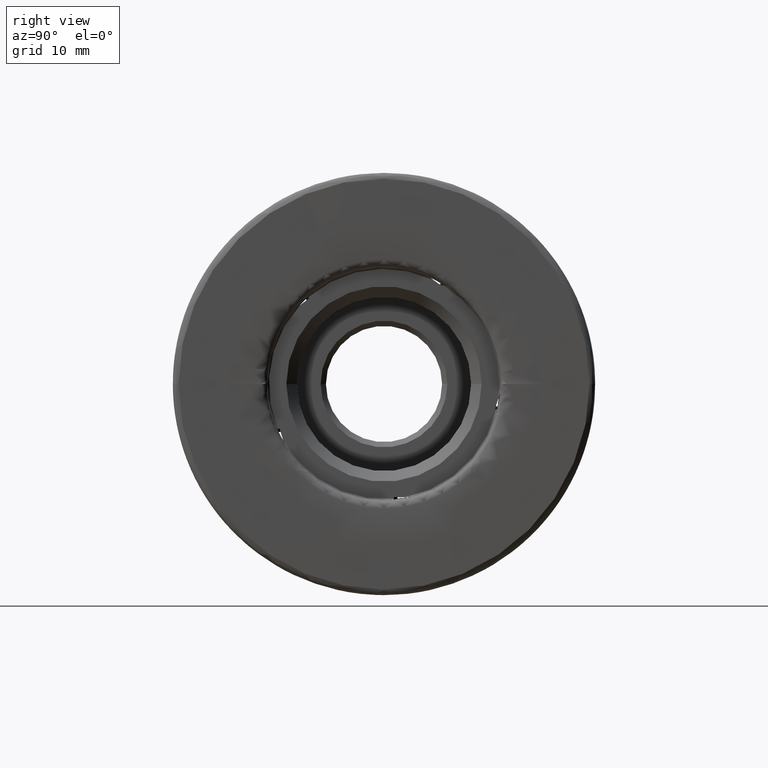
[diagram: clean part render]
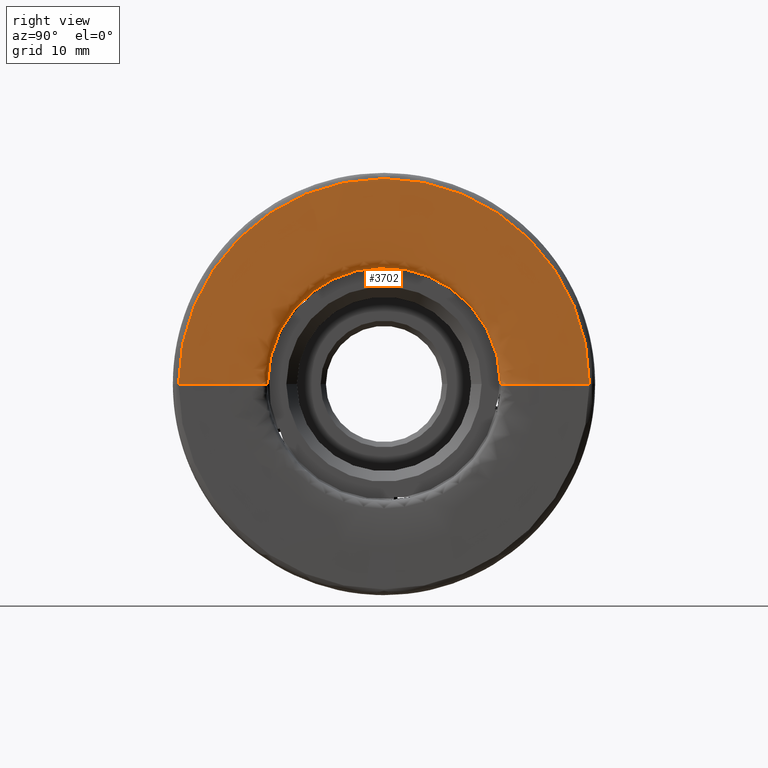
[diagram: same view with one face highlighted and labeled with its STEP entity id]
A machine part, right view. The second image highlights one B-rep face of the part: STEP entity #3702.
In plain terms, the highlighted face is a freeform B-spline surface patch.
Its self-contained STEP definition (entity closure, byte-faithful):
#27 = ORIENTED_EDGE ( 'NONE', *, *, #3282, .T. ) ;
#33 = DIRECTION ( 'NONE',  ( 1.000000000000000000, 1.212845221071201000E-016, -0.0000000000000000000 ) ) ;
#34 = CARTESIAN_POINT ( 'NONE',  ( -0.8696917510313565400, -7.516596019862685800E-016, 0.0000000000000000000 ) ) ;
#83 = ORIENTED_EDGE ( 'NONE', *, *, #2773, .T. ) ;
#88 = VERTEX_POINT ( 'NONE', #342 ) ;
#96 = ORIENTED_EDGE ( 'NONE', *, *, #1976, .T. ) ;
#97 = ORIENTED_EDGE ( 'NONE', *, *, #8500, .T. ) ;
#98 = EDGE_CURVE ( 'NONE', #3058, #8533, #6278, .T. ) ;
#143 = CARTESIAN_POINT ( 'NONE',  ( -8.133452040763304000, 6.528902845552036800, 9.136199286077710400 ) ) ;
#153 = CARTESIAN_POINT ( 'NONE',  ( -7.730191986444244100, 4.188811731818793400, 10.20871659907246500 ) ) ;
#172 = CARTESIAN_POINT ( 'NONE',  ( -5.167618179684886600, 7.210644156053779100, 8.355523014367426200 ) ) ;
#189 = ORIENTED_EDGE ( 'NONE', *, *, #1206, .T. ) ;
#225 = CARTESIAN_POINT ( 'NONE',  ( -8.103095340901520100, 6.304940127833405400, 9.254847104982353300 ) ) ;
#231 = EDGE_CURVE ( 'NONE', #4981, #3433, #4327, .T. ) ;
#241 = AXIS2_PLACEMENT_3D ( 'NONE', #4249, #33, #4140 ) ;
#246 = CARTESIAN_POINT ( 'NONE',  ( -8.103095340901520100, 6.304940127833405400, 9.254847104982353300 ) ) ;
#251 = CARTESIAN_POINT ( 'NONE',  ( 0.1414108656386861600, -11.00691800903628200, 1.347958690824363700E-015 ) ) ;
#257 = CARTESIAN_POINT ( 'NONE',  ( -7.500320081746114200, -5.138439484843711800, 9.765985245245646600 ) ) ;
#259 = CARTESIAN_POINT ( 'NONE',  ( -8.097428561273543900, -6.651165486291844800, 9.003299657788391000 ) ) ;
#260 = CARTESIAN_POINT ( 'NONE',  ( -7.853251010269622700, -8.464398965193375100, 7.102320641829043900 ) ) ;
#266 = ORIENTED_EDGE ( 'NONE', *, *, #6986, .F. ) ;
#268 = CARTESIAN_POINT ( 'NONE',  ( 0.6937419162715179300, -19.45537401582458500, 2.382596151469448700E-015 ) ) ;
#285 = CARTESIAN_POINT ( 'NONE',  ( 0.6969263167657552300, -19.31370703505474800, 2.365246950014951400E-015 ) ) ;
#342 = CARTESIAN_POINT ( 'NONE',  ( -0.8696917510313612000, 4.186646063532990100, 10.21029004918365300 ) ) ;
#383 = CARTESIAN_POINT ( 'NONE',  ( -8.254990625574258400, -11.59891533884588500, 1.420457454329875000E-015 ) ) ;
#415 = CARTESIAN_POINT ( 'NONE',  ( -7.757778927113879100, 11.03530824896869900, 0.0000000000000000000 ) ) ;
#427 = CARTESIAN_POINT ( 'NONE',  ( -5.389265046463071600, -6.475850095882044000, 8.935401148545077300 ) ) ;
#453 = CARTESIAN_POINT ( 'NONE',  ( -2.510481555865624600, 11.03530824896864700, 22.07061649793729400 ) ) ;
#475 = CARTESIAN_POINT ( 'NONE',  ( 0.09418834465118783300, -11.03530824896861900, 22.07061649793724100 ) ) ;
#482 = CARTESIAN_POINT ( 'NONE',  ( -7.949537994690445900, -6.358018307624207400, 9.075089869590669900 ) ) ;
#498 = B_SPLINE_CURVE_WITH_KNOTS ( 'NONE', 3,
 ( #609, #8728, #6030, #1970 ),
 .UNSPECIFIED., .F., .F.,
 ( 4, 4 ),
 ( 0.0001001541824127477300, 0.0006842766820816323200 ),
 .UNSPECIFIED. ) ;
#500 = CARTESIAN_POINT ( 'NONE',  ( 0.1414108656386861600, -11.00691800903628200, 1.347958690824363700E-015 ) ) ;
#515 = ORIENTED_EDGE ( 'NONE', *, *, #3437, .F. ) ;
#531 = CARTESIAN_POINT ( 'NONE',  ( 0.6714722102465933200, 11.41926280022476400, 0.0000000000000000000 ) ) ;
#559 = CARTESIAN_POINT ( 'NONE',  ( 0.6969263167657572300, 11.77911201348555000, 23.55822402697109700 ) ) ;
#582 = CARTESIAN_POINT ( 'NONE',  ( 0.6969263167657566700, -16.72179351124919200, 33.44358702249838400 ) ) ;
#586 = B_SPLINE_CURVE_WITH_KNOTS ( 'NONE', 3,
 ( #6435, #5750, #2362, #7106 ),
 .UNSPECIFIED., .F., .F.,
 ( 4, 4 ),
 ( 0.007308597439289497100, 0.007310968974594453900 ),
 .UNSPECIFIED. ) ;
#596 = CARTESIAN_POINT ( 'NONE',  ( -5.369035156198138200, -5.138439484843835300, 9.765985245245557800 ) ) ;
#601 = EDGE_CURVE ( 'NONE', #1209, #7885, #7044, .T. ) ;
#609 = CARTESIAN_POINT ( 'NONE',  ( -5.228294190569582300, 6.942295137775761100, 8.578028116634442300 ) ) ;
#612 = CARTESIAN_POINT ( 'NONE',  ( 0.6969263167657552300, -19.31370703505474800, 2.365246950014951400E-015 ) ) ;
#614 = CARTESIAN_POINT ( 'NONE',  ( -0.8696917510316236600, -6.825045140086192700, 8.671608096860776300 ) ) ;
#626 = CARTESIAN_POINT ( 'NONE',  ( -7.795526551225449000, 7.061729519420713300, 8.481836371073169900 ) ) ;
#642 = ORIENTED_EDGE ( 'NONE', *, *, #4142, .T. ) ;
#667 = CARTESIAN_POINT ( 'NONE',  ( 0.6982908682429076500, 11.51890422923840000, 0.0000000000000000000 ) ) ;
#713 = DIRECTION ( 'NONE',  ( -1.178981662885766900E-016, 1.000000000000000000, 0.0000000000000000000 ) ) ;
#794 = CARTESIAN_POINT ( 'NONE',  ( -5.369035156198118700, 7.700138780149115900, 7.904801763244902800 ) ) ;
#803 = VERTEX_POINT ( 'NONE', #8547 ) ;
#809 = CARTESIAN_POINT ( 'NONE',  ( -8.253408673220558700, 3.017228392203058700, 11.05992172040585000 ) ) ;
#820 = CARTESIAN_POINT ( 'NONE',  ( -8.168596550491511000, -6.794680611048133500, 8.993622668373296500 ) ) ;
#844 = CARTESIAN_POINT ( 'NONE',  ( -7.591243055322445700, 4.186646063532768900, 10.21029004918382000 ) ) ;
#851 = CARTESIAN_POINT ( 'NONE',  ( -5.228294190569582300, 6.942295137775761100, 8.578028116634442300 ) ) ;
#909 = CARTESIAN_POINT ( 'NONE',  ( -8.254990625574258400, -9.882657756378288000, 6.071895314315892000 ) ) ;
#929 = CARTESIAN_POINT ( 'NONE',  ( 0.5629607940360884500, -11.15629238571688500, 1.366251776052017200E-015 ) ) ;
#933 = VERTEX_POINT ( 'NONE', #5375 ) ;
#934 = VERTEX_POINT ( 'NONE', #1309 ) ;
#940 = CARTESIAN_POINT ( 'NONE',  ( -7.730191986444257400, -8.414652433189239400, 7.138463612950823200 ) ) ;
#951 = B_SPLINE_CURVE_WITH_KNOTS ( 'NONE', 3,
 ( #7657, #2898, #4285, #225 ),
 .UNSPECIFIED., .F., .F.,
 ( 4, 4 ),
 ( 0.003299936296098163200, 0.003674845063559309200 ),
 .UNSPECIFIED. ) ;
#965 = CARTESIAN_POINT ( 'NONE',  ( 0.6937419162715179300, -19.45537401582458500, 2.382596151469448700E-015 ) ) ;
#969 = CARTESIAN_POINT ( 'NONE',  ( -8.225970248938017100, -6.943921952626083400, 8.998936396492363000 ) ) ;
#973 = CARTESIAN_POINT ( 'NONE',  ( -8.097848563752895900, -6.550092255241969100, 9.076733658589038400 ) ) ;
#993 = CARTESIAN_POINT ( 'NONE',  ( -6.789891773230120700, 7.700138780149209200, 7.904801763244835300 ) ) ;
#1014 = ORIENTED_EDGE ( 'NONE', *, *, #8697, .F. ) ;
#1069 = CARTESIAN_POINT ( 'NONE',  ( -8.254990625574262000, 11.50844146396793400, 23.01688292793586800 ) ) ;
#1087 = EDGE_CURVE ( 'NONE', #3058, #7319, #5105, .T. ) ;
#1100 = CARTESIAN_POINT ( 'NONE',  ( -7.757778927113876400, -11.03530824896869900, 22.07061649793739700 ) ) ;
#1103 = CARTESIAN_POINT ( 'NONE',  ( -0.8696917510313565400, -7.516596019862685800E-016, 0.0000000000000000000 ) ) ;
#1126 = CARTESIAN_POINT ( 'NONE',  ( -2.510481555865622400, -11.03530824896864900, 1.351435492470383700E-015 ) ) ;
#1159 = CARTESIAN_POINT ( 'NONE',  ( 0.1151765312538646600, 11.00573363477670700, 0.0000000000000000000 ) ) ;
#1169 = CARTESIAN_POINT ( 'NONE',  ( -7.718127067398414800, -5.654813678435170100, 9.480206047370064200 ) ) ;
#1190 = CARTESIAN_POINT ( 'NONE',  ( 0.3735472964681108600, 11.02085949907357000, 22.04171899814713600 ) ) ;
#1206 = EDGE_CURVE ( 'NONE', #3433, #4292, #3506, .T. ) ;
#1209 = VERTEX_POINT ( 'NONE', #3083 ) ;
#1220 = CARTESIAN_POINT ( 'NONE',  ( 0.6714722102465962000, -11.41926280022476300, 22.83852560044952900 ) ) ;
#1240 = CARTESIAN_POINT ( 'NONE',  ( 0.6969263167657600000, -11.77911201348555200, 1.442525182411321500E-015 ) ) ;
#1272 = CARTESIAN_POINT ( 'NONE',  ( 0.6969263167657506800, 19.16754985605572500, 0.0000000000000000000 ) ) ;
#1295 = CARTESIAN_POINT ( 'NONE',  ( 0.6977100512374900800, 19.41120173582892500, 38.82240347165784300 ) ) ;
#1299 = EDGE_CURVE ( 'NONE', #6760, #934, #6981, .T. ) ;
#1304 = CARTESIAN_POINT ( 'NONE',  ( -5.322623754658423900, -5.205156805567278300, 9.730881473683417900 ) ) ;
#1308 = CARTESIAN_POINT ( 'NONE',  ( -5.228294190569582300, -6.012902359748980400, 9.253271495091947700 ) ) ;
#1309 = CARTESIAN_POINT ( 'NONE',  ( -8.097848563752901200, 6.608396871083175300, 9.034372875601386400 ) ) ;
#1314 = CARTESIAN_POINT ( 'NONE',  ( -8.254990625574258400, -9.882657756378288000, 6.071895314315892000 ) ) ;
#1319 = CARTESIAN_POINT ( 'NONE',  ( -0.2446104554640997400, 11.03530824896862100, 0.0000000000000000000 ) ) ;
#1329 = CARTESIAN_POINT ( 'NONE',  ( -8.254990625574260200, -1.647382046603456600E-015, 0.0000000000000000000 ) ) ;
#1345 = CARTESIAN_POINT ( 'NONE',  ( 0.6969263167657572300, 11.77911201348555000, 0.0000000000000000000 ) ) ;
#1359 = CIRCLE ( 'NONE', #5379, 19.45537401582458500 ) ;
#1367 = ORIENTED_EDGE ( 'NONE', *, *, #4884, .T. ) ;
#1373 = ORIENTED_EDGE ( 'NONE', *, *, #601, .F. ) ;
#1440 = CARTESIAN_POINT ( 'NONE',  ( -7.641061047374766000, 7.467963322844704900, 8.124503182250761000 ) ) ;
#1446 = CARTESIAN_POINT ( 'NONE',  ( -7.641061047374766000, -5.419134113012509200, 9.613064735813477300 ) ) ;
#1450 = CARTESIAN_POINT ( 'NONE',  ( -7.608861582086029300, -5.320663269652974300, 9.668575306172876100 ) ) ;
#1455 = VERTEX_POINT ( 'NONE', #8222 ) ;
#1485 = CARTESIAN_POINT ( 'NONE',  ( -7.561935809097423800, -5.227013328919222000, 9.719381515433180900 ) ) ;
#1492 = CARTESIAN_POINT ( 'NONE',  ( -8.181320298477579900, 3.452905980176133900, 10.74338342424462100 ) ) ;
#1496 = CARTESIAN_POINT ( 'NONE',  ( -8.115696190556647600, -6.610610708264952800, 9.054137626308529400 ) ) ;
#1500 = CARTESIAN_POINT ( 'NONE',  ( -8.186039964715188700, 6.417455931034591100, 9.294817484444752900 ) ) ;
#1510 = CARTESIAN_POINT ( 'NONE',  ( -4.552733561601819200, 4.186646063532845300, 10.21029004918375800 ) ) ;
#1555 = EDGE_CURVE ( 'NONE', #6975, #6736, #586, .T. ) ;
#1579 = VERTEX_POINT ( 'NONE', #3070 ) ;
#1586 = CARTESIAN_POINT ( 'NONE',  ( -8.253408673220558700, -9.586235772804981200, 6.287258491617449400 ) ) ;
#1608 = CARTESIAN_POINT ( 'NONE',  ( 0.6714722102465962000, -11.41926280022476600, 1.398456363691769900E-015 ) ) ;
#1619 = CARTESIAN_POINT ( 'NONE',  ( -7.591243055322459900, -8.416818101475271900, 7.136890162839468300 ) ) ;
#1623 = VERTEX_POINT ( 'NONE', #427 ) ;
#1648 = CARTESIAN_POINT ( 'NONE',  ( -8.099219451445970100, -6.752319262858111200, 8.929807137244649700 ) ) ;
#1669 = CARTESIAN_POINT ( 'NONE',  ( -7.641061047374766000, -5.419134113012509200, 9.613064735813477300 ) ) ;
#1704 = CARTESIAN_POINT ( 'NONE',  ( -7.500320081746123100, 7.700138780149251800, 7.904801763244803300 ) ) ;
#1734 = CARTESIAN_POINT ( 'NONE',  ( -8.102536846945383800, 6.304578706288220100, 9.254432779714026200 ) ) ;
#1741 = CARTESIAN_POINT ( 'NONE',  ( -8.254990625574258400, -11.50844146396793700, 1.409377600202301300E-015 ) ) ;
#1764 = CARTESIAN_POINT ( 'NONE',  ( -8.101977386003802900, 6.304217719004478600, 9.254019196085854700 ) ) ;
#1773 = CARTESIAN_POINT ( 'NONE',  ( -7.667305052235933600, 11.03530824896869700, 0.0000000000000000000 ) ) ;
#1775 = DIRECTION ( 'NONE',  ( -1.178981662885766900E-016, 1.000000000000000000, 0.0000000000000000000 ) ) ;
#1808 = CARTESIAN_POINT ( 'NONE',  ( 0.06793019231952912600, 11.03530824896861900, 22.07061649793723400 ) ) ;
#1836 = CARTESIAN_POINT ( 'NONE',  ( 0.1151765312538673600, -11.00573363477670500, 22.01146726955341400 ) ) ;
#1850 = CARTESIAN_POINT ( 'NONE',  ( -8.202900976399851300, 6.386680185810615900, 9.352497112597877300 ) ) ;
#1858 = CARTESIAN_POINT ( 'NONE',  ( -8.103095340901520100, 6.304940127833405400, 9.254847104982353300 ) ) ;
#1862 = CARTESIAN_POINT ( 'NONE',  ( 0.3735472964681134700, -11.02085949907357000, 1.349666030939314800E-015 ) ) ;
#1896 = CARTESIAN_POINT ( 'NONE',  ( 0.6982908682429076500, 11.51890422923840000, 0.0000000000000000000 ) ) ;
#1925 = CARTESIAN_POINT ( 'NONE',  ( 0.6969263167657572300, 11.83028082163613700, 23.66056164327226300 ) ) ;
#1938 = CARTESIAN_POINT ( 'NONE',  ( -3.881345571862484100, 6.390931035752313200, 8.997289751217397900 ) ) ;
#1949 = CARTESIAN_POINT ( 'NONE',  ( 0.6969263167657553400, -19.16754985605572200, 38.33509971211144300 ) ) ;
#1970 = CARTESIAN_POINT ( 'NONE',  ( -5.389265046463077800, 6.496923755382821900, 8.920090238697053300 ) ) ;
#1972 = CIRCLE ( 'NONE', #4173, 11.59891533884588300 ) ;
#1975 = CARTESIAN_POINT ( 'NONE',  ( 0.6977100512374947400, -19.41120173582892500, 2.377186607338644100E-015 ) ) ;
#1976 = EDGE_CURVE ( 'NONE', #1579, #933, #7634, .T. ) ;
#1985 = CARTESIAN_POINT ( 'NONE',  ( -5.284766256120973600, -5.274566670378680700, 9.693488852353208800 ) ) ;
#1989 = B_SPLINE_CURVE_WITH_KNOTS ( 'NONE', 3,
 ( #1704, #993, #2369, #7116 ),
 .UNSPECIFIED., .F., .F.,
 ( 4, 4 ),
 ( 0.0009313455847956795300, 0.003068269161334829400 ),
 .UNSPECIFIED. ) ;
#2005 = CARTESIAN_POINT ( 'NONE',  ( 0.07668290976341447800, 11.03530824896862100, 0.0000000000000000000 ) ) ;
#2015 = DIRECTION ( 'NONE',  ( -1.495591118047953400E-016, 1.000000000000000000, 0.0000000000000000000 ) ) ;
#2022 = CARTESIAN_POINT ( 'NONE',  ( -5.281942811959955200, -6.169997256073138200, 9.151189083124130300 ) ) ;
#2028 = CARTESIAN_POINT ( 'NONE',  ( 0.6969263167657551200, 14.27603716644266800, 0.0000000000000000000 ) ) ;
#2064 = CARTESIAN_POINT ( 'NONE',  ( -8.097848563752901200, 6.608396871083175300, 9.034372875601386400 ) ) ;
#2101 = ORIENTED_EDGE ( 'NONE', *, *, #4421, .F. ) ;
#2111 = CARTESIAN_POINT ( 'NONE',  ( -8.025962926947555000, 6.478343789075183600, 9.046086960316015900 ) ) ;
#2147 = CARTESIAN_POINT ( 'NONE',  ( -0.8696917510316236600, -6.825045140086192700, 8.671608096860776300 ) ) ;
#2158 = CARTESIAN_POINT ( 'NONE',  ( -8.084689000081132400, 3.737112518526766200, 10.53689528739569100 ) ) ;
#2190 = CARTESIAN_POINT ( 'NONE',  ( -0.8696917510313612000, 4.186646063532990100, 10.21029004918365300 ) ) ;
#2240 = ORIENTED_EDGE ( 'NONE', *, *, #3322, .F. ) ;
#2255 = B_SPLINE_CURVE_WITH_KNOTS ( 'NONE', 3,
 ( #2612, #1938, #2583, #7355 ),
 .UNSPECIFIED., .F., .F.,
 ( 4, 4 ),
 ( 0.0001947277688316339200, 0.004735485741109748400 ),
 .UNSPECIFIED. ) ;
#2261 = CARTESIAN_POINT ( 'NONE',  ( -8.181320298477578100, -9.150558184831901100, 6.603796787778681400 ) ) ;
#2279 = CARTESIAN_POINT ( 'NONE',  ( 0.6969263167657601100, -11.67677439718438000, 1.429992438987761200E-015 ) ) ;
#2289 = CARTESIAN_POINT ( 'NONE',  ( -4.552733561601827200, -8.416818101475176000, 7.136890162839534000 ) ) ;
#2322 = CARTESIAN_POINT ( 'NONE',  ( -8.254909641250778300, -7.023099398535223700, 9.112222273959838900 ) ) ;
#2341 = CARTESIAN_POINT ( 'NONE',  ( -0.8696917510313578700, 11.03530824896863100, 0.0000000000000000000 ) ) ;
#2362 = CARTESIAN_POINT ( 'NONE',  ( -8.102536846945378500, -6.853266637145045700, 8.855787663343276600 ) ) ;
#2369 = CARTESIAN_POINT ( 'NONE',  ( -6.079463464714121900, 7.700138780149172700, 7.904801763244861100 ) ) ;
#2419 = CARTESIAN_POINT ( 'NONE',  ( -8.254990625574262000, 11.32749371421204600, 22.65498742842409300 ) ) ;
#2454 = CARTESIAN_POINT ( 'NONE',  ( -7.667305052235931000, -11.03530824896869700, 22.07061649793739400 ) ) ;
#2479 = CARTESIAN_POINT ( 'NONE',  ( 0.06793019231953180400, -11.03530824896862100, 1.351435492470380200E-015 ) ) ;
#2485 = ORIENTED_EDGE ( 'NONE', *, *, #8375, .T. ) ;
#2512 = CARTESIAN_POINT ( 'NONE',  ( 0.1326738906256556300, 11.00639328980257400, 0.0000000000000000000 ) ) ;
#2537 = ORIENTED_EDGE ( 'NONE', *, *, #98, .T. ) ;
#2539 = CARTESIAN_POINT ( 'NONE',  ( 0.5629607940360857900, 11.15629238571688100, 22.31258477143376200 ) ) ;
#2567 = CARTESIAN_POINT ( 'NONE',  ( 0.6982908682429104200, -11.51890422923839600, 23.03780845847680000 ) ) ;
#2583 = CARTESIAN_POINT ( 'NONE',  ( -2.374354239655523300, 6.274780688857371800, 9.079217622547176300 ) ) ;
#2584 = ORIENTED_EDGE ( 'NONE', *, *, #6290, .T. ) ;
#2587 = CARTESIAN_POINT ( 'NONE',  ( 0.6969263167657600000, -11.83028082163613700, 1.448791554123101400E-015 ) ) ;
#2588 = EDGE_CURVE ( 'NONE', #3575, #803, #1989, .T. ) ;
#2593 = ORIENTED_EDGE ( 'NONE', *, *, #231, .T. ) ;
#2612 = CARTESIAN_POINT ( 'NONE',  ( -5.389265046463077800, 6.496923755382821900, 8.920090238697053300 ) ) ;
#2616 = CARTESIAN_POINT ( 'NONE',  ( 0.6969263167657506800, 19.21871866420630300, 0.0000000000000000000 ) ) ;
#2644 = CARTESIAN_POINT ( 'NONE',  ( 0.6937419162715129400, 19.45537401582457800, 38.91074803164914900 ) ) ;
#2655 = CARTESIAN_POINT ( 'NONE',  ( -5.204029470584484500, -5.493588658285973200, 9.571104599944716200 ) ) ;
#2657 = B_SPLINE_CURVE_WITH_KNOTS ( 'NONE', 3,
 ( #909, #4975, #1586, #6332, #2261, #7002, #2932, #7692, #3630, #8372, #4322, #260, #5008, #940, #5679, #1619, #6367, #2289, #7034, #2961 ),
 .UNSPECIFIED., .F., .F.,
 ( 4, 2, 2, 2, 2, 2, 2, 2, 1, 1, 4 ),
 ( 0.001677953997465552700, 0.002227831849715342800, 0.002777709701965132900, 0.003052648628090031200, 0.003327587554214929900, 0.003465057017277376300, 0.003602526480339822600, 0.003739995943402266300, 0.003877465406464710100, 0.006076976815463782900, 0.01047599963346192800 ),
 .UNSPECIFIED. ) ;
#2670 = CARTESIAN_POINT ( 'NONE',  ( 0.1151765312538646600, 11.00573363477670700, 0.0000000000000000000 ) ) ;
#2693 = CARTESIAN_POINT ( 'NONE',  ( 0.6969263167657506800, 19.16754985605572500, 0.0000000000000000000 ) ) ;
#2735 =( BOUNDED_CURVE ( )  B_SPLINE_CURVE ( 3, ( #6424, #4705, #1319, #6060, #2005, #6747, #2670, #7424, #3351, #8097, #4050, #8790, #4734, #667, #5414, #1345, #6087, #2028, #6773, #2693, #7450, #3384, #8127, #4076 ),
 .UNSPECIFIED., .F., .F. ) 
 B_SPLINE_CURVE_WITH_KNOTS ( ( 4, 3, 1, 1, 3, 3, 1, 1, 3, 3, 1, 4 ),
 ( 0.2198479356713848300, 0.2469285383746738800, 0.2476869320919483600, 0.2484453258092228500, 0.2492037195264973400, 0.2673078447924207600, 0.2717270988369754300, 0.2761463528815302200, 0.2805656069260849000, 0.4917962181018118400, 0.4962154721463659700, 0.5000000000000000000 ),
 .UNSPECIFIED. ) 
 CURVE ( )  GEOMETRIC_REPRESENTATION_ITEM ( )  RATIONAL_B_SPLINE_CURVE ( ( 1.000000000000000000, 1.000000000000000000, 1.000000000000000000, 1.000000000000000000, 1.000000000000000000, 1.000000000000000000, 1.000000000000000000, 1.000000000000000000, 1.000000000000000000, 0.8984638551776719100, 0.8984638551776719100, 1.000000000000000000, 1.000000000000000000, 1.000000000000000000, 1.000000000000000000, 1.000000000000000000, 1.000000000000000000, 1.000000000000000000, 1.000000000000000000, 1.000000000000000000, 1.000000000000000000, 1.000000000000000000, 1.000000000000000000, 1.000000000000000000 ) ) 
 REPRESENTATION_ITEM ( '' )  );
#2773 = EDGE_CURVE ( 'NONE', #5381, #6666, #2255, .T. ) ;
#2783 = B_SPLINE_CURVE_WITH_KNOTS ( 'NONE', 3,
 ( #973, #259, #1648, #6393 ),
 .UNSPECIFIED., .F., .F.,
 ( 4, 4 ),
 ( 0.003299936296098143200, 0.003674845063559309200 ),
 .UNSPECIFIED. ) ;
#2820 = CARTESIAN_POINT ( 'NONE',  ( -8.186038306733232500, -6.856787463676824700, 8.975620969015292200 ) ) ;
#2842 = CARTESIAN_POINT ( 'NONE',  ( -7.993870454932744200, 3.947782654404698600, 10.38383447429970000 ) ) ;
#2898 = CARTESIAN_POINT ( 'NONE',  ( -8.097428561273549300, 6.507323640033305900, 9.107806876402033700 ) ) ;
#2900 = CARTESIAN_POINT ( 'NONE',  ( -5.228294190569582300, -6.012902359748980400, 9.253271495091947700 ) ) ;
#2921 = CARTESIAN_POINT ( 'NONE',  ( 0.06793019231953180400, -11.03530824896862100, 1.351435492470380200E-015 ) ) ;
#2931 = CARTESIAN_POINT ( 'NONE',  ( -0.8696917510313565400, -7.516596019862685800E-016, 0.0000000000000000000 ) ) ;
#2932 = CARTESIAN_POINT ( 'NONE',  ( -8.084689000081141300, -8.866351646481273700, 6.810284924627603200 ) ) ;
#2952 = CARTESIAN_POINT ( 'NONE',  ( 0.6969263167657600000, -11.83028082163613700, 1.448791554123101400E-015 ) ) ;
#2961 = CARTESIAN_POINT ( 'NONE',  ( -0.8696917510313575400, -8.416818101475035600, 7.136890162839639700 ) ) ;
#2988 = CARTESIAN_POINT ( 'NONE',  ( -8.254990625574260200, -7.078535149806358900, 9.188535093836787100 ) ) ;
#3050 = CARTESIAN_POINT ( 'NONE',  ( -5.369035156198138200, -5.138439484843835300, 9.765985245245557800 ) ) ;
#3058 = VERTEX_POINT ( 'NONE', #5687 ) ;
#3070 = CARTESIAN_POINT ( 'NONE',  ( -8.202900976399851300, -6.921160607514742000, 8.964174355843846700 ) ) ;
#3083 = CARTESIAN_POINT ( 'NONE',  ( -8.254990625574260200, -7.078535149806358900, 9.188535093836787100 ) ) ;
#3090 = CARTESIAN_POINT ( 'NONE',  ( -8.254990625574258400, -11.32749371421205000, 1.387217891947154900E-015 ) ) ;
#3115 = ORIENTED_EDGE ( 'NONE', *, *, #1555, .F. ) ;
#3121 = CARTESIAN_POINT ( 'NONE',  ( -5.088893304050778900, 11.03530824896867000, 0.0000000000000000000 ) ) ;
#3149 = CARTESIAN_POINT ( 'NONE',  ( 0.07668290976341447800, 11.03530824896862100, 22.07061649793723700 ) ) ;
#3150 = CARTESIAN_POINT ( 'NONE',  ( -7.608861582086031000, 7.551186176556798000, 8.048005554617095200 ) ) ;
#3188 = CARTESIAN_POINT ( 'NONE',  ( 0.1326738906256582900, -11.00639328980257200, 22.01278657960514800 ) ) ;
#3207 = CARTESIAN_POINT ( 'NONE',  ( 0.5629607940360884500, -11.15629238571688300, 1.366251776052016800E-015 ) ) ;
#3218 = CARTESIAN_POINT ( 'NONE',  ( -8.225970248937960200, 6.412707208634895300, 9.384886499505253000 ) ) ;
#3240 = CARTESIAN_POINT ( 'NONE',  ( 0.6969263167657573400, 11.67677439718437800, 0.0000000000000000000 ) ) ;
#3274 = CARTESIAN_POINT ( 'NONE',  ( 0.6969263167657550100, 14.27603716644266800, 28.55207433288533300 ) ) ;
#3278 = EDGE_LOOP ( 'NONE', ( #6299, #1014, #266, #1373, #6933, #96, #6729, #3115, #27, #2593, #189, #2485, #1367, #5267, #6910, #2101, #515, #2240, #7520, #3581, #5672, #2537, #642, #3419, #97, #2584, #83, #4905, #4983, #5462 ) ) ;
#3279 = VERTEX_POINT ( 'NONE', #7914 ) ;
#3282 = EDGE_CURVE ( 'NONE', #6975, #4981, #7919, .T. ) ;
#3298 = CARTESIAN_POINT ( 'NONE',  ( 0.6969263167657552300, -19.21871866420630000, 38.43743732841259900 ) ) ;
#3321 = CARTESIAN_POINT ( 'NONE',  ( 0.6937419162715177100, -19.45537401582457800, 2.382596151469415900E-015 ) ) ;
#3322 = EDGE_CURVE ( 'NONE', #6760, #1455, #8282, .T. ) ;
#3323 = CARTESIAN_POINT ( 'NONE',  ( -5.369035156198138200, -5.138439484843835300, 9.765985245245557800 ) ) ;
#3333 = CARTESIAN_POINT ( 'NONE',  ( -5.179542511372928500, -5.870146781124159200, 9.346036022322755000 ) ) ;
#3351 = CARTESIAN_POINT ( 'NONE',  ( 0.1414108656386834600, 11.00691800903628000, 0.0000000000000000000 ) ) ;
#3369 = CARTESIAN_POINT ( 'NONE',  ( -5.335599772628957500, -6.324310264393160400, 9.045228252663063600 ) ) ;
#3384 = CARTESIAN_POINT ( 'NONE',  ( 0.6969263167657505600, 19.31370703505474800, 0.0000000000000000000 ) ) ;
#3401 = AXIS2_PLACEMENT_3D ( 'NONE', #1103, #5844, #1775 ) ;
#3416 = B_SPLINE_CURVE_WITH_KNOTS ( 'NONE', 3,
 ( #4148, #7548, #6219, #2147 ),
 .UNSPECIFIED., .F., .F.,
 ( 4, 4 ),
 ( 0.0001947277688316383900, 0.004735485741109673800 ),
 .UNSPECIFIED. ) ;
#3419 = ORIENTED_EDGE ( 'NONE', *, *, #2588, .T. ) ;
#3429 = CARTESIAN_POINT ( 'NONE',  ( 0.6937419162715156000, -5.620392968012575600E-016, 0.0000000000000000000 ) ) ;
#3433 = VERTEX_POINT ( 'NONE', #4035 ) ;
#3437 = EDGE_CURVE ( 'NONE', #1455, #6189, #1972, .T. ) ;
#3506 = B_SPLINE_CURVE_WITH_KNOTS ( 'NONE', 3,
 ( #3844, #8585, #7241, #3050 ),
 .UNSPECIFIED., .F., .F.,
 ( 4, 4 ),
 ( 0.0009313455847956253200, 0.003068269161334500200 ),
 .UNSPECIFIED. ) ;
#3529 = CARTESIAN_POINT ( 'NONE',  ( -7.910450801032281400, 4.080532369951239200, 10.28738616037452900 ) ) ;
#3542 = CARTESIAN_POINT ( 'NONE',  ( -5.284766256120956700, 7.589124999554259800, 8.011863792658116900 ) ) ;
#3575 = VERTEX_POINT ( 'NONE', #7635 ) ;
#3581 = ORIENTED_EDGE ( 'NONE', *, *, #3610, .T. ) ;
#3602 = CARTESIAN_POINT ( 'NONE',  ( -8.101416959362657300, -6.852703627134733500, 8.854846057319493400 ) ) ;
#3610 = EDGE_CURVE ( 'NONE', #934, #7319, #951, .T. ) ;
#3619 = CARTESIAN_POINT ( 'NONE',  ( 0.09418834465118783300, -11.03530824896862200, 1.351435492470380400E-015 ) ) ;
#3628 = DIRECTION ( 'NONE',  ( -1.178981662885766900E-016, 1.000000000000000000, 0.0000000000000000000 ) ) ;
#3630 = CARTESIAN_POINT ( 'NONE',  ( -7.993870454932749500, -8.655681510603335100, 6.963345737723588300 ) ) ;
#3649 = CARTESIAN_POINT ( 'NONE',  ( 0.6969263167657566700, -16.72179351124919900, 2.047829089955431100E-015 ) ) ;
#3660 = EDGE_CURVE ( 'NONE', #1579, #1209, #5686, .T. ) ;
#3702 = ADVANCED_FACE ( 'NONE', ( #8153 ), #4211, .T. ) ;
#3713 = CARTESIAN_POINT ( 'NONE',  ( -8.101416959362657300, 6.303857165404703100, 9.253606353111630200 ) ) ;
#3722 = EDGE_CURVE ( 'NONE', #7378, #5825, #2735, .T. ) ;
#3756 = VERTEX_POINT ( 'NONE', #4156 ) ;
#3788 = B_SPLINE_CURVE_WITH_KNOTS ( 'NONE', 3,
 ( #596, #1304, #1985, #6734, #2655, #7405, #3333, #8083 ),
 .UNSPECIFIED., .F., .F.,
 ( 4, 2, 2, 4 ),
 ( 2.444052391651729000E-017, 0.0002618485275939599100, 0.0005236970551878953200, 0.001047394110375766400 ),
 .UNSPECIFIED. ) ;
#3791 = CARTESIAN_POINT ( 'NONE',  ( -7.938726676869766400, 11.03530824896869900, 22.07061649793739700 ) ) ;
#3828 = CARTESIAN_POINT ( 'NONE',  ( -5.088893304050776200, -11.03530824896867000, 22.07061649793734000 ) ) ;
#3844 = CARTESIAN_POINT ( 'NONE',  ( -7.500320081746114200, -5.138439484843711800, 9.765985245245646600 ) ) ;
#3849 = CARTESIAN_POINT ( 'NONE',  ( 0.07668290976341715600, -11.03530824896862200, 1.351435492470380400E-015 ) ) ;
#3851 = CARTESIAN_POINT ( 'NONE',  ( -7.561935809097440700, 7.628445176150994400, 7.974639150312821600 ) ) ;
#3882 = CARTESIAN_POINT ( 'NONE',  ( 0.1414108656386834600, 11.00691800903628000, 0.0000000000000000000 ) ) ;
#3911 = CARTESIAN_POINT ( 'NONE',  ( 0.6519544093815115000, 11.37196266939045800, 22.74392533878091200 ) ) ;
#3921 = CARTESIAN_POINT ( 'NONE',  ( -8.254909641250780100, 6.495981304247481900, 9.495195986740942100 ) ) ;
#3942 = CARTESIAN_POINT ( 'NONE',  ( 0.6969263167657602200, -11.67677439718437600, 23.35354879436875600 ) ) ;
#3948 = EDGE_CURVE ( 'NONE', #7378, #6666, #7839, .T. ) ;
#3969 = CARTESIAN_POINT ( 'NONE',  ( 0.6969263167657585600, -14.27603716644267000, 1.748310322039266500E-015 ) ) ;
#3999 = CARTESIAN_POINT ( 'NONE',  ( 0.6969263167657505600, 19.31370703505474800, 0.0000000000000000000 ) ) ;
#4035 = CARTESIAN_POINT ( 'NONE',  ( -7.500320081746114200, -5.138439484843711800, 9.765985245245646600 ) ) ;
#4050 = CARTESIAN_POINT ( 'NONE',  ( 0.5629607940360857900, 11.15629238571688100, 0.0000000000000000000 ) ) ;
#4066 = CARTESIAN_POINT ( 'NONE',  ( -8.115697111180507400, 6.568203463712772600, 9.084949395453024900 ) ) ;
#4076 = CARTESIAN_POINT ( 'NONE',  ( 0.6937419162715131600, 19.45537401582458500, 0.0000000000000000000 ) ) ;
#4121 = DIRECTION ( 'NONE',  ( -1.393191119846420800E-016, 1.000000000000000000, 0.0000000000000000000 ) ) ;
#4140 = DIRECTION ( 'NONE',  ( -1.495591118047953400E-016, 1.000000000000000000, 0.0000000000000000000 ) ) ;
#4142 = EDGE_CURVE ( 'NONE', #8533, #3575, #6830, .T. ) ;
#4148 = CARTESIAN_POINT ( 'NONE',  ( -5.389265046463071600, -6.475850095882044000, 8.935401148545077300 ) ) ;
#4156 = CARTESIAN_POINT ( 'NONE',  ( -0.8696917510313553200, -11.03530824896862800, 1.351435492470397700E-015 ) ) ;
#4173 = AXIS2_PLACEMENT_3D ( 'NONE', #1329, #6073, #2015 ) ;
#4182 = CARTESIAN_POINT ( 'NONE',  ( -8.254990625574260200, 2.720806408629906000, 11.27528489770762500 ) ) ;
#4196 = CARTESIAN_POINT ( 'NONE',  ( -8.202900976399851300, -6.921160607514742000, 8.964174355843846700 ) ) ;
#4211 =( BOUNDED_SURFACE ( )  B_SPLINE_SURFACE ( 3, 3, ( 
 ( #5773, #8496, #4449, #383 ),
 ( #5132, #1069, #5806, #1741 ),
 ( #6499, #2419, #7157, #3090 ),
 ( #7845, #3791, #8529, #4482 ),
 ( #415, #5162, #1100, #5840 ),
 ( #1773, #6524, #2454, #7187 ),
 ( #3121, #7870, #3828, #8559 ),
 ( #4511, #453, #5190, #1126 ),
 ( #5868, #1808, #6555, #2479 ),
 ( #7225, #3149, #7902, #3849 ),
 ( #8597, #4541, #475, #5220 ),
 ( #1159, #5895, #1836, #6593 ),
 ( #2512, #7251, #3188, #7933 ),
 ( #3882, #8623, #4571, #500 ),
 ( #5249, #1190, #5928, #1862 ),
 ( #6617, #2539, #7279, #3207 ),
 ( #7966, #3911, #8656, #4593 ),
 ( #531, #5277, #1220, #5956 ),
 ( #1896, #6643, #2567, #7311 ),
 ( #3240, #7993, #3942, #8681 ),
 ( #4620, #559, #5307, #1240 ),
 ( #5981, #1925, #6669, #2587 ),
 ( #7338, #3274, #8017, #3969 ),
 ( #8712, #4648, #582, #5329 ),
 ( #1272, #6007, #1949, #6698 ),
 ( #2616, #7360, #3298, #8047 ),
 ( #3999, #8737, #4681, #612 ),
 ( #5353, #1295, #6034, #1975 ),
 ( #6722, #2644, #7390, #3321 ) ),
 .UNSPECIFIED., .F., .F., .F. ) 
 B_SPLINE_SURFACE_WITH_KNOTS ( ( 4, 1, 1, 3, 3, 1, 1, 3, 3, 1, 1, 3, 3, 1, 4 ),
 ( 4, 4 ),
 ( 0.0000000000000000000, 0.007839258918708402700, 0.01567851783741669400, 0.02351777675612509700, 0.2469285383746738800, 0.2476869320919483600, 0.2484453258092228500, 0.2492037195264973400, 0.2673078447924207600, 0.2717270988369754300, 0.2761463528815302200, 0.2805656069260849000, 0.4917962181018118400, 0.4962154721463659700, 0.5000000000000000000 ),
 ( 0.0000000000000000000, 1.000000000000000000 ),
 .UNSPECIFIED. ) 
 GEOMETRIC_REPRESENTATION_ITEM ( )  RATIONAL_B_SPLINE_SURFACE ( (
 ( 1.000000000000000000, 0.3333333333333334300, 0.3333333333333334300, 1.000000000000000000),
 ( 1.000000000000000000, 0.3333333333333334300, 0.3333333333333334300, 1.000000000000000000),
 ( 1.000000000000000000, 0.3333333333333334300, 0.3333333333333334300, 1.000000000000000000),
 ( 1.000000000000000000, 0.3333333333333334300, 0.3333333333333334300, 1.000000000000000000),
 ( 1.000000000000000000, 0.3333333333333334300, 0.3333333333333334300, 1.000000000000000000),
 ( 1.000000000000000000, 0.3333333333333334300, 0.3333333333333334300, 1.000000000000000000),
 ( 1.000000000000000000, 0.3333333333333334300, 0.3333333333333334300, 1.000000000000000000),
 ( 1.000000000000000000, 0.3333333333333334300, 0.3333333333333334300, 1.000000000000000000),
 ( 1.000000000000000000, 0.3333333333333334300, 0.3333333333333334300, 1.000000000000000000),
 ( 1.000000000000000000, 0.3333333333333334300, 0.3333333333333334300, 1.000000000000000000),
 ( 1.000000000000000000, 0.3333333333333334300, 0.3333333333333334300, 1.000000000000000000),
 ( 1.000000000000000000, 0.3333333333333334300, 0.3333333333333334300, 1.000000000000000000),
 ( 1.000000000000000000, 0.3333333333333334300, 0.3333333333333334300, 1.000000000000000000),
 ( 1.000000000000000000, 0.3333333333333334300, 0.3333333333333334300, 1.000000000000000000),
 ( 0.8984638551776719100, 0.2994879517258907100, 0.2994879517258907100, 0.8984638551776719100),
 ( 0.8984638551776719100, 0.2994879517258907100, 0.2994879517258907100, 0.8984638551776719100),
 ( 1.000000000000000000, 0.3333333333333334300, 0.3333333333333334300, 1.000000000000000000),
 ( 1.000000000000000000, 0.3333333333333334300, 0.3333333333333334300, 1.000000000000000000),
 ( 1.000000000000000000, 0.3333333333333334300, 0.3333333333333334300, 1.000000000000000000),
 ( 1.000000000000000000, 0.3333333333333334300, 0.3333333333333334300, 1.000000000000000000),
 ( 1.000000000000000000, 0.3333333333333334300, 0.3333333333333334300, 1.000000000000000000),
 ( 1.000000000000000000, 0.3333333333333334300, 0.3333333333333334300, 1.000000000000000000),
 ( 1.000000000000000000, 0.3333333333333334300, 0.3333333333333334300, 1.000000000000000000),
 ( 1.000000000000000000, 0.3333333333333334300, 0.3333333333333334300, 1.000000000000000000),
 ( 1.000000000000000000, 0.3333333333333334300, 0.3333333333333334300, 1.000000000000000000),
 ( 1.000000000000000000, 0.3333333333333334300, 0.3333333333333334300, 1.000000000000000000),
 ( 1.000000000000000000, 0.3333333333333334300, 0.3333333333333334300, 1.000000000000000000),
 ( 1.000000000000000000, 0.3333333333333334300, 0.3333333333333334300, 1.000000000000000000),
 ( 1.000000000000000000, 0.3333333333333334300, 0.3333333333333334300, 1.000000000000000000) ) ) 
 REPRESENTATION_ITEM ( '' )  SURFACE ( )  );
#4214 = CARTESIAN_POINT ( 'NONE',  ( -7.817699202949581800, 4.164605673713314400, 10.22630332972146600 ) ) ;
#4229 = CARTESIAN_POINT ( 'NONE',  ( -5.204029470584478300, 7.405049142404113400, 8.182347267631161700 ) ) ;
#4249 = CARTESIAN_POINT ( 'NONE',  ( -8.254990625574260200, -1.647382046603456600E-015, 0.0000000000000000000 ) ) ;
#4277 = VERTEX_POINT ( 'NONE', #614 ) ;
#4285 = CARTESIAN_POINT ( 'NONE',  ( -8.099219451445979000, 6.406169863467048300, 9.181299396945771500 ) ) ;
#4292 = VERTEX_POINT ( 'NONE', #3323 ) ;
#4314 = CARTESIAN_POINT ( 'NONE',  ( 0.1326738906256582600, -11.00639328980257600, 1.347894431251362800E-015 ) ) ;
#4322 = CARTESIAN_POINT ( 'NONE',  ( -7.910450801032293800, -8.522931795056806000, 7.059794051648760900 ) ) ;
#4327 = B_SPLINE_CURVE_WITH_KNOTS ( 'NONE', 3,
 ( #1669, #1450, #1485, #257 ),
 .UNSPECIFIED., .F., .F.,
 ( 4, 4 ),
 ( 3.576224061345498000E-018, 0.0003492594678657990900 ),
 .UNSPECIFIED. ) ;
#4347 = CARTESIAN_POINT ( 'NONE',  ( 0.6969263167657553400, -19.21871866420630300, 2.353614229583374600E-015 ) ) ;
#4421 = EDGE_CURVE ( 'NONE', #6189, #88, #5433, .T. ) ;
#4449 = CARTESIAN_POINT ( 'NONE',  ( -8.254990625574258400, -11.59891533884588100, 23.19783067769176200 ) ) ;
#4482 = CARTESIAN_POINT ( 'NONE',  ( -7.938726676869763700, -11.03530824896870200, 1.351435492470390300E-015 ) ) ;
#4511 = CARTESIAN_POINT ( 'NONE',  ( -2.510481555865625000, 11.03530824896864700, 0.0000000000000000000 ) ) ;
#4529 = CARTESIAN_POINT ( 'NONE',  ( 0.6937419162715131600, 19.45537401582458500, 0.0000000000000000000 ) ) ;
#4541 = CARTESIAN_POINT ( 'NONE',  ( 0.09418834465118515500, 11.03530824896862100, 22.07061649793723700 ) ) ;
#4551 = CARTESIAN_POINT ( 'NONE',  ( -8.025962356657446500, -6.601419725135795800, 8.956666448295640800 ) ) ;
#4571 = CARTESIAN_POINT ( 'NONE',  ( 0.1414108656386861600, -11.00691800903627800, 22.01383601807255600 ) ) ;
#4593 = CARTESIAN_POINT ( 'NONE',  ( 0.6519544093815141700, -11.37196266939045900, 1.392663768309221400E-015 ) ) ;
#4603 = CARTESIAN_POINT ( 'NONE',  ( -8.254990625574262000, 6.551428519629624200, 9.571500477453774600 ) ) ;
#4620 = CARTESIAN_POINT ( 'NONE',  ( 0.6969263167657572300, 11.77911201348555000, 0.0000000000000000000 ) ) ;
#4648 = CARTESIAN_POINT ( 'NONE',  ( 0.6969263167657526700, 16.72179351124919600, 33.44358702249838400 ) ) ;
#4681 = CARTESIAN_POINT ( 'NONE',  ( 0.6969263167657552300, -19.31370703505474400, 38.62741407010948800 ) ) ;
#4705 = CARTESIAN_POINT ( 'NONE',  ( -0.5571511032477285400, 11.03530824896862400, 0.0000000000000000000 ) ) ;
#4734 = CARTESIAN_POINT ( 'NONE',  ( 0.6714722102465933200, 11.41926280022476400, 0.0000000000000000000 ) ) ;
#4787 = DIRECTION ( 'NONE',  ( 1.000000000000000000, 1.212845221071201000E-016, -0.0000000000000000000 ) ) ;
#4811 = CARTESIAN_POINT ( 'NONE',  ( -0.8696917510313575400, -8.416818101475035600, 7.136890162839639700 ) ) ;
#4813 = B_SPLINE_CURVE_WITH_KNOTS ( 'NONE', 3,
 ( #794, #5565, #3542, #8285, #4229, #172, #4915, #851 ),
 .UNSPECIFIED., .F., .F.,
 ( 4, 2, 2, 4 ),
 ( 2.372198675544789900E-017, 0.0002618485275939492900, 0.0005236970551878748300, 0.001047394110375731200 ),
 .UNSPECIFIED. ) ;
#4877 = CARTESIAN_POINT ( 'NONE',  ( -8.254990625574262000, 2.869093251063357100, 11.16754820033606600 ) ) ;
#4884 = EDGE_CURVE ( 'NONE', #8535, #1623, #7371, .T. ) ;
#4901 = CARTESIAN_POINT ( 'NONE',  ( -7.683319100586706100, 4.186646063532766200, 10.21029004918382600 ) ) ;
#4905 = ORIENTED_EDGE ( 'NONE', *, *, #3948, .F. ) ;
#4915 = CARTESIAN_POINT ( 'NONE',  ( -5.179542511372935600, 7.074633345716558900, 8.470925308735301600 ) ) ;
#4926 = EDGE_CURVE ( 'NONE', #5825, #6559, #1359, .T. ) ;
#4975 = CARTESIAN_POINT ( 'NONE',  ( -8.254990625574262000, -9.734370913944811600, 6.179632011687418800 ) ) ;
#4981 = VERTEX_POINT ( 'NONE', #1446 ) ;
#4983 = ORIENTED_EDGE ( 'NONE', *, *, #3722, .T. ) ;
#5000 = CARTESIAN_POINT ( 'NONE',  ( 0.3735472964681134700, -11.02085949907357500, 1.349666030939315000E-015 ) ) ;
#5002 = CIRCLE ( 'NONE', #7552, 11.03530824896862800 ) ;
#5008 = CARTESIAN_POINT ( 'NONE',  ( -7.817699202949600400, -8.438858491294716700, 7.120876882301828000 ) ) ;
#5031 = CARTESIAN_POINT ( 'NONE',  ( 0.6977100512374948500, -19.41120173582892500, 2.377186607338643700E-015 ) ) ;
#5074 = CARTESIAN_POINT ( 'NONE',  ( -8.168598444992067400, 6.453767707342951400, 9.241313311701251400 ) ) ;
#5089 = CARTESIAN_POINT ( 'NONE',  ( -7.718127121051403500, 7.268778071839940400, 8.307592303589894200 ) ) ;
#5105 = B_SPLINE_CURVE_WITH_KNOTS ( 'NONE', 3,
 ( #8470, #1764, #1734, #1858 ),
 .UNSPECIFIED., .F., .F.,
 ( 4, 4 ),
 ( 0.007308597439289493700, 0.007310968974594453900 ),
 .UNSPECIFIED. ) ;
#5132 = CARTESIAN_POINT ( 'NONE',  ( -8.254990625574262000, 11.50844146396793600, 0.0000000000000000000 ) ) ;
#5162 = CARTESIAN_POINT ( 'NONE',  ( -7.757778927113879100, 11.03530824896869900, 22.07061649793739700 ) ) ;
#5190 = CARTESIAN_POINT ( 'NONE',  ( -2.510481555865621900, -11.03530824896864500, 22.07061649793729100 ) ) ;
#5191 = CARTESIAN_POINT ( 'NONE',  ( -7.641061047374766000, 7.467963322844704900, 8.124503182250761000 ) ) ;
#5220 = CARTESIAN_POINT ( 'NONE',  ( 0.09418834465118783300, -11.03530824896862200, 1.351435492470380400E-015 ) ) ;
#5229 = CARTESIAN_POINT ( 'NONE',  ( -7.795525396846372200, -5.884507838414978500, 9.337137515477392600 ) ) ;
#5249 = CARTESIAN_POINT ( 'NONE',  ( 0.3735472964681108000, 11.02085949907357000, 0.0000000000000000000 ) ) ;
#5267 = ORIENTED_EDGE ( 'NONE', *, *, #6897, .T. ) ;
#5277 = CARTESIAN_POINT ( 'NONE',  ( 0.6714722102465933200, 11.41926280022476400, 22.83852560044952500 ) ) ;
#5307 = CARTESIAN_POINT ( 'NONE',  ( 0.6969263167657601100, -11.77911201348555000, 23.55822402697110000 ) ) ;
#5329 = CARTESIAN_POINT ( 'NONE',  ( 0.6969263167657566700, -16.72179351124919900, 2.047829089955431100E-015 ) ) ;
#5336 = CARTESIAN_POINT ( 'NONE',  ( -5.389265046463077800, 6.496923755382821900, 8.920090238697053300 ) ) ;
#5353 = CARTESIAN_POINT ( 'NONE',  ( 0.6977100512374900800, 19.41120173582892500, 0.0000000000000000000 ) ) ;
#5375 = CARTESIAN_POINT ( 'NONE',  ( -8.097848563752895900, -6.550092255241969100, 9.076733658589038400 ) ) ;
#5379 = AXIS2_PLACEMENT_3D ( 'NONE', #3429, #8172, #4121 ) ;
#5381 = VERTEX_POINT ( 'NONE', #5336 ) ;
#5414 = CARTESIAN_POINT ( 'NONE',  ( 0.6969263167657573400, 11.67677439718437800, 0.0000000000000000000 ) ) ;
#5433 = B_SPLINE_CURVE_WITH_KNOTS ( 'NONE', 3,
 ( #4182, #4877, #809, #5555, #1492, #6233, #2158, #6907, #2842, #7594, #3529, #8274, #4214, #153, #4901, #844, #5581, #1510, #6265, #2190 ),
 .UNSPECIFIED., .F., .F.,
 ( 4, 2, 2, 2, 2, 2, 2, 2, 1, 1, 4 ),
 ( 0.001677953997465563500, 0.002227831849715342400, 0.002777709701965121200, 0.003052648628090013000, 0.003327587554214904800, 0.003465057017277350200, 0.003602526480339796100, 0.003739995943402241600, 0.003877465406464687500, 0.006076976815463789800, 0.01047599963346199800 ),
 .UNSPECIFIED. ) ;
#5462 = ORIENTED_EDGE ( 'NONE', *, *, #4926, .T. ) ;
#5555 = CARTESIAN_POINT ( 'NONE',  ( -8.216780503432387300, 3.309149824119985300, 10.84782838528197500 ) ) ;
#5561 = CARTESIAN_POINT ( 'NONE',  ( -8.133450464943349400, -6.671494501758301600, 9.032598315362340800 ) ) ;
#5565 = CARTESIAN_POINT ( 'NONE',  ( -5.322623754658407000, 7.646136323535701600, 7.957406043889333700 ) ) ;
#5581 = CARTESIAN_POINT ( 'NONE',  ( -6.808596670576220000, 4.186646063532735200, 10.21029004918382200 ) ) ;
#5647 = CARTESIAN_POINT ( 'NONE',  ( -0.8696917510313553200, -11.03530824896862800, 1.351435492470397700E-015 ) ) ;
#5671 = CARTESIAN_POINT ( 'NONE',  ( 0.6519544093815141700, -11.37196266939045900, 1.392663768309221400E-015 ) ) ;
#5672 = ORIENTED_EDGE ( 'NONE', *, *, #1087, .F. ) ;
#5679 = CARTESIAN_POINT ( 'NONE',  ( -7.683319100586719400, -8.416818101475275400, 7.136890162839467400 ) ) ;
#5686 = B_SPLINE_CURVE_WITH_KNOTS ( 'NONE', 3,
 ( #5712, #969, #6390, #2322, #7061, #2988 ),
 .UNSPECIFIED., .F., .F.,
 ( 4, 2, 4 ),
 ( 0.007474393671303211100, 0.007615965407303517000, 0.007757537143303822900 ),
 .UNSPECIFIED. ) ;
#5687 = CARTESIAN_POINT ( 'NONE',  ( -8.101416959362657300, 6.303857165404703100, 9.253606353111630200 ) ) ;
#5712 = CARTESIAN_POINT ( 'NONE',  ( -8.202900976399851300, -6.921160607514742000, 8.964174355843846700 ) ) ;
#5750 = CARTESIAN_POINT ( 'NONE',  ( -8.101977386003799400, -6.852984846945875400, 8.855316539665073700 ) ) ;
#5773 = CARTESIAN_POINT ( 'NONE',  ( -8.254990625574262000, 11.59891533884588100, 0.0000000000000000000 ) ) ;
#5806 = CARTESIAN_POINT ( 'NONE',  ( -8.254990625574258400, -11.50844146396793400, 23.01688292793586800 ) ) ;
#5825 = VERTEX_POINT ( 'NONE', #4529 ) ;
#5840 = CARTESIAN_POINT ( 'NONE',  ( -7.757778927113876400, -11.03530824896870200, 1.351435492470390300E-015 ) ) ;
#5844 = DIRECTION ( 'NONE',  ( 1.000000000000000000, 1.212845221071201000E-016, -0.0000000000000000000 ) ) ;
#5864 = CARTESIAN_POINT ( 'NONE',  ( -8.254990625574260200, 2.720806408629906000, 11.27528489770762500 ) ) ;
#5868 = CARTESIAN_POINT ( 'NONE',  ( 0.06793019231952912600, 11.03530824896861900, 0.0000000000000000000 ) ) ;
#5891 = AXIS2_PLACEMENT_3D ( 'NONE', #2931, #7690, #3628 ) ;
#5895 = CARTESIAN_POINT ( 'NONE',  ( 0.1151765312538646600, 11.00573363477670700, 22.01146726955341000 ) ) ;
#5908 = CARTESIAN_POINT ( 'NONE',  ( -7.641061047374766000, -5.419134113012509200, 9.613064735813477300 ) ) ;
#5928 = CARTESIAN_POINT ( 'NONE',  ( 0.3735472964681134700, -11.02085949907356800, 22.04171899814714000 ) ) ;
#5940 = CARTESIAN_POINT ( 'NONE',  ( -8.103095340901516500, -6.853548998491757700, 8.856259429208064300 ) ) ;
#5956 = CARTESIAN_POINT ( 'NONE',  ( 0.6714722102465962000, -11.41926280022476600, 1.398456363691769900E-015 ) ) ;
#5981 = CARTESIAN_POINT ( 'NONE',  ( 0.6969263167657571100, 11.83028082163613700, 0.0000000000000000000 ) ) ;
#6007 = CARTESIAN_POINT ( 'NONE',  ( 0.6969263167657507900, 19.16754985605572500, 38.33509971211144300 ) ) ;
#6015 = EDGE_CURVE ( 'NONE', #3756, #6559, #6191, .T. ) ;
#6030 = CARTESIAN_POINT ( 'NONE',  ( -5.335593912354912800, 6.648220441542714600, 8.809893703895353300 ) ) ;
#6034 = CARTESIAN_POINT ( 'NONE',  ( 0.6977100512374948500, -19.41120173582892100, 38.82240347165784300 ) ) ;
#6060 = CARTESIAN_POINT ( 'NONE',  ( 0.06793019231952912600, 11.03530824896861900, 0.0000000000000000000 ) ) ;
#6073 = DIRECTION ( 'NONE',  ( 1.000000000000000000, 1.212845221071201000E-016, -0.0000000000000000000 ) ) ;
#6087 = CARTESIAN_POINT ( 'NONE',  ( 0.6969263167657571100, 11.83028082163613700, 0.0000000000000000000 ) ) ;
#6189 = VERTEX_POINT ( 'NONE', #5864 ) ;
#6191 =( BOUNDED_CURVE ( )  B_SPLINE_CURVE ( 3, ( #5647, #6321, #6998, #2921, #7681, #3619, #8363, #4314, #251, #5000, #929, #5671, #1608, #6356, #2279, #7027, #2952, #7711, #3649, #8392, #4347, #285, #5031, #965 ),
 .UNSPECIFIED., .F., .F. ) 
 B_SPLINE_CURVE_WITH_KNOTS ( ( 4, 3, 1, 1, 3, 3, 1, 1, 3, 3, 1, 4 ),
 ( 0.2198479356713848300, 0.2469285383746738800, 0.2476869320919483600, 0.2484453258092228500, 0.2492037195264973400, 0.2673078447924207600, 0.2717270988369754300, 0.2761463528815302200, 0.2805656069260849000, 0.4917962181018118400, 0.4962154721463659700, 0.5000000000000000000 ),
 .UNSPECIFIED. ) 
 CURVE ( )  GEOMETRIC_REPRESENTATION_ITEM ( )  RATIONAL_B_SPLINE_CURVE ( ( 1.000000000000000000, 1.000000000000000000, 1.000000000000000000, 1.000000000000000000, 1.000000000000000000, 1.000000000000000000, 1.000000000000000000, 1.000000000000000000, 1.000000000000000000, 0.8984638551776719100, 0.8984638551776719100, 1.000000000000000000, 1.000000000000000000, 1.000000000000000000, 1.000000000000000000, 1.000000000000000000, 1.000000000000000000, 1.000000000000000000, 1.000000000000000000, 1.000000000000000000, 1.000000000000000000, 1.000000000000000000, 1.000000000000000000, 1.000000000000000000 ) ) 
 REPRESENTATION_ITEM ( '' )  );
#6219 = CARTESIAN_POINT ( 'NONE',  ( -2.374354239655568600, -6.695835213952627800, 8.773303603456374900 ) ) ;
#6233 = CARTESIAN_POINT ( 'NONE',  ( -8.110840813060534100, 3.666317260706172500, 10.58833105298345800 ) ) ;
#6245 = CARTESIAN_POINT ( 'NONE',  ( -8.097848563752895900, -6.550092255241969100, 9.076733658589038400 ) ) ;
#6265 = CARTESIAN_POINT ( 'NONE',  ( -2.342908475259546800, 4.186646063532933200, 10.21029004918369400 ) ) ;
#6278 = B_SPLINE_CURVE_WITH_KNOTS ( 'NONE', 3,
 ( #3713, #2111, #7812, #626, #5089, #1440 ),
 .UNSPECIFIED., .F., .F.,
 ( 4, 2, 4 ),
 ( 1.124223251218370400E-005, 0.0008543398990119572900, 0.001697437565511730800 ),
 .UNSPECIFIED. ) ;
#6290 = EDGE_CURVE ( 'NONE', #3279, #5381, #498, .T. ) ;
#6299 = ORIENTED_EDGE ( 'NONE', *, *, #6015, .F. ) ;
#6321 = CARTESIAN_POINT ( 'NONE',  ( -0.5571511032477258800, -11.03530824896862800, 1.351435492470381200E-015 ) ) ;
#6332 = CARTESIAN_POINT ( 'NONE',  ( -8.216780503432394400, -9.294314340888048400, 6.499351826741317100 ) ) ;
#6356 = CARTESIAN_POINT ( 'NONE',  ( 0.6982908682429104200, -11.51890422923840200, 1.410658919402171600E-015 ) ) ;
#6359 = VERTEX_POINT ( 'NONE', #4811 ) ;
#6367 = CARTESIAN_POINT ( 'NONE',  ( -6.808596670576237700, -8.416818101475280800, 7.136890162839453200 ) ) ;
#6390 = CARTESIAN_POINT ( 'NONE',  ( -8.240404276497837800, -6.969019303386048100, 9.035628363456467600 ) ) ;
#6393 = CARTESIAN_POINT ( 'NONE',  ( -8.103095340901516500, -6.853548998491757700, 8.856259429208064300 ) ) ;
#6424 = CARTESIAN_POINT ( 'NONE',  ( -0.8696917510313578700, 11.03530824896863100, 0.0000000000000000000 ) ) ;
#6435 = CARTESIAN_POINT ( 'NONE',  ( -8.101416959362657300, -6.852703627134733500, 8.854846057319493400 ) ) ;
#6499 = CARTESIAN_POINT ( 'NONE',  ( -8.254990625574262000, 11.32749371421204600, 0.0000000000000000000 ) ) ;
#6508 = CARTESIAN_POINT ( 'NONE',  ( -0.8696917510315536100, 6.138134451614466700, 9.170677924976917700 ) ) ;
#6524 = CARTESIAN_POINT ( 'NONE',  ( -7.667305052235933600, 11.03530824896869700, 22.07061649793739400 ) ) ;
#6555 = CARTESIAN_POINT ( 'NONE',  ( 0.06793019231953181800, -11.03530824896861700, 22.07061649793723700 ) ) ;
#6559 = VERTEX_POINT ( 'NONE', #268 ) ;
#6593 = CARTESIAN_POINT ( 'NONE',  ( 0.1151765312538673400, -11.00573363477670900, 1.347813646809765900E-015 ) ) ;
#6604 = CIRCLE ( 'NONE', #3401, 11.03530824896862800 ) ;
#6617 = CARTESIAN_POINT ( 'NONE',  ( 0.5629607940360856800, 11.15629238571688300, 0.0000000000000000000 ) ) ;
#6628 = CARTESIAN_POINT ( 'NONE',  ( -8.202900976399851300, 6.386680185810615900, 9.352497112597877300 ) ) ;
#6643 = CARTESIAN_POINT ( 'NONE',  ( 0.6982908682429076500, 11.51890422923840000, 23.03780845847679300 ) ) ;
#6666 = VERTEX_POINT ( 'NONE', #6508 ) ;
#6669 = CARTESIAN_POINT ( 'NONE',  ( 0.6969263167657598900, -11.83028082163613500, 23.66056164327227100 ) ) ;
#6698 = CARTESIAN_POINT ( 'NONE',  ( 0.6969263167657553400, -19.16754985605572500, 2.347347857871595500E-015 ) ) ;
#6722 = CARTESIAN_POINT ( 'NONE',  ( 0.6937419162715129400, 19.45537401582457800, 0.0000000000000000000 ) ) ;
#6729 = ORIENTED_EDGE ( 'NONE', *, *, #8619, .T. ) ;
#6734 = CARTESIAN_POINT ( 'NONE',  ( -5.225500573452103800, -5.418327270249032600, 9.613870671245852200 ) ) ;
#6736 = VERTEX_POINT ( 'NONE', #5940 ) ;
#6747 = CARTESIAN_POINT ( 'NONE',  ( 0.09418834465118515500, 11.03530824896862100, 0.0000000000000000000 ) ) ;
#6760 = VERTEX_POINT ( 'NONE', #1850 ) ;
#6773 = CARTESIAN_POINT ( 'NONE',  ( 0.6969263167657526700, 16.72179351124919900, 0.0000000000000000000 ) ) ;
#6830 = B_SPLINE_CURVE_WITH_KNOTS ( 'NONE', 3,
 ( #5191, #3150, #3851, #8598 ),
 .UNSPECIFIED., .F., .F.,
 ( 4, 4 ),
 ( 1.226634733346699300E-018, 0.0003492594678657835300 ),
 .UNSPECIFIED. ) ;
#6897 = EDGE_CURVE ( 'NONE', #1623, #4277, #3416, .T. ) ;
#6907 = CARTESIAN_POINT ( 'NONE',  ( -8.025738709022919100, 3.877848440165903500, 10.43464465510682600 ) ) ;
#6910 = ORIENTED_EDGE ( 'NONE', *, *, #7948, .F. ) ;
#6933 = ORIENTED_EDGE ( 'NONE', *, *, #3660, .F. ) ;
#6974 = CARTESIAN_POINT ( 'NONE',  ( -7.641061047374766000, 7.467963322844704900, 8.124503182250761000 ) ) ;
#6975 = VERTEX_POINT ( 'NONE', #3602 ) ;
#6981 = B_SPLINE_CURVE_WITH_KNOTS ( 'NONE', 3,
 ( #7610, #1500, #5074, #143, #4066, #2064 ),
 .UNSPECIFIED., .F., .F.,
 ( 4, 2, 4 ),
 ( 0.007725997192683413600, 0.007927271795457732300, 0.008128546398232050100 ),
 .UNSPECIFIED. ) ;
#6986 = EDGE_CURVE ( 'NONE', #7885, #6359, #2657, .T. ) ;
#6998 = CARTESIAN_POINT ( 'NONE',  ( -0.2446104554640970700, -11.03530824896862400, 1.351435492470380600E-015 ) ) ;
#7002 = CARTESIAN_POINT ( 'NONE',  ( -8.110840813060537600, -8.937146904301860300, 6.758849159039837000 ) ) ;
#7027 = CARTESIAN_POINT ( 'NONE',  ( 0.6969263167657600000, -11.77911201348555200, 1.442525182411321500E-015 ) ) ;
#7034 = CARTESIAN_POINT ( 'NONE',  ( -2.342908475259547300, -8.416818101475097800, 7.136890162839590000 ) ) ;
#7044 = CIRCLE ( 'NONE', #241, 11.59891533884588300 ) ;
#7061 = CARTESIAN_POINT ( 'NONE',  ( -8.254990625574260200, -7.050852550026521100, 9.150433263988158900 ) ) ;
#7106 = CARTESIAN_POINT ( 'NONE',  ( -8.103095340901516500, -6.853548998491757700, 8.856259429208064300 ) ) ;
#7116 = CARTESIAN_POINT ( 'NONE',  ( -5.369035156198118700, 7.700138780149115900, 7.904801763244902800 ) ) ;
#7157 = CARTESIAN_POINT ( 'NONE',  ( -8.254990625574258400, -11.32749371421204600, 22.65498742842409300 ) ) ;
#7187 = CARTESIAN_POINT ( 'NONE',  ( -7.667305052235931000, -11.03530824896870000, 1.351435492470390100E-015 ) ) ;
#7225 = CARTESIAN_POINT ( 'NONE',  ( 0.07668290976341447800, 11.03530824896862100, 0.0000000000000000000 ) ) ;
#7241 = CARTESIAN_POINT ( 'NONE',  ( -6.079463464714129000, -5.138439484843773100, 9.765985245245600400 ) ) ;
#7251 = CARTESIAN_POINT ( 'NONE',  ( 0.1326738906256556300, 11.00639328980257400, 22.01278657960514500 ) ) ;
#7279 = CARTESIAN_POINT ( 'NONE',  ( 0.5629607940360884500, -11.15629238571688100, 22.31258477143376200 ) ) ;
#7311 = CARTESIAN_POINT ( 'NONE',  ( 0.6982908682429104200, -11.51890422923840200, 1.410658919402171600E-015 ) ) ;
#7319 = VERTEX_POINT ( 'NONE', #246 ) ;
#7338 = CARTESIAN_POINT ( 'NONE',  ( 0.6969263167657551200, 14.27603716644266800, 0.0000000000000000000 ) ) ;
#7355 = CARTESIAN_POINT ( 'NONE',  ( -0.8696917510315536100, 6.138134451614466700, 9.170677924976917700 ) ) ;
#7360 = CARTESIAN_POINT ( 'NONE',  ( 0.6969263167657506800, 19.21871866420630300, 38.43743732841259900 ) ) ;
#7371 = B_SPLINE_CURVE_WITH_KNOTS ( 'NONE', 3,
 ( #1308, #2022, #3369, #8114 ),
 .UNSPECIFIED., .F., .F.,
 ( 4, 4 ),
 ( 7.366345920391857200E-005, 0.0006577415657390563900 ),
 .UNSPECIFIED. ) ;
#7378 = VERTEX_POINT ( 'NONE', #2341 ) ;
#7390 = CARTESIAN_POINT ( 'NONE',  ( 0.6937419162715177100, -19.45537401582457400, 38.91074803164914900 ) ) ;
#7405 = CARTESIAN_POINT ( 'NONE',  ( -5.167618179684887500, -5.718363025257265700, 9.439728719631027300 ) ) ;
#7424 = CARTESIAN_POINT ( 'NONE',  ( 0.1326738906256556300, 11.00639328980257400, 0.0000000000000000000 ) ) ;
#7450 = CARTESIAN_POINT ( 'NONE',  ( 0.6969263167657506800, 19.21871866420630300, 0.0000000000000000000 ) ) ;
#7520 = ORIENTED_EDGE ( 'NONE', *, *, #1299, .T. ) ;
#7548 = CARTESIAN_POINT ( 'NONE',  ( -3.881345571862505400, -6.582024746965173800, 8.858452043186884900 ) ) ;
#7552 = AXIS2_PLACEMENT_3D ( 'NONE', #34, #4787, #713 ) ;
#7594 = CARTESIAN_POINT ( 'NONE',  ( -7.932993679677889700, 4.048049553606140300, 10.31098630787862700 ) ) ;
#7610 = CARTESIAN_POINT ( 'NONE',  ( -8.202900976399851300, 6.386680185810615900, 9.352497112597877300 ) ) ;
#7634 = B_SPLINE_CURVE_WITH_KNOTS ( 'NONE', 3,
 ( #4196, #2820, #820, #5561, #1496, #6245 ),
 .UNSPECIFIED., .F., .F.,
 ( 4, 2, 4 ),
 ( 0.007595627371222741500, 0.007798952643275533200, 0.008002277915328323900 ),
 .UNSPECIFIED. ) ;
#7635 = CARTESIAN_POINT ( 'NONE',  ( -7.500320081746123100, 7.700138780149251800, 7.904801763244803300 ) ) ;
#7657 = CARTESIAN_POINT ( 'NONE',  ( -8.097848563752901200, 6.608396871083175300, 9.034372875601386400 ) ) ;
#7681 = CARTESIAN_POINT ( 'NONE',  ( 0.07668290976341715600, -11.03530824896862200, 1.351435492470380400E-015 ) ) ;
#7690 = DIRECTION ( 'NONE',  ( 1.000000000000000000, 1.212845221071201000E-016, -0.0000000000000000000 ) ) ;
#7692 = CARTESIAN_POINT ( 'NONE',  ( -8.025738709022924400, -8.725615724842132400, 6.912535556916465900 ) ) ;
#7711 = CARTESIAN_POINT ( 'NONE',  ( 0.6969263167657585600, -14.27603716644267000, 1.748310322039266500E-015 ) ) ;
#7812 = CARTESIAN_POINT ( 'NONE',  ( -7.949538874615083900, 6.666185456823984400, 8.851193941047800000 ) ) ;
#7839 = CIRCLE ( 'NONE', #5891, 11.03530824896862800 ) ;
#7845 = CARTESIAN_POINT ( 'NONE',  ( -7.938726676869767300, 11.03530824896869900, 0.0000000000000000000 ) ) ;
#7870 = CARTESIAN_POINT ( 'NONE',  ( -5.088893304050778900, 11.03530824896867000, 22.07061649793734000 ) ) ;
#7885 = VERTEX_POINT ( 'NONE', #1314 ) ;
#7902 = CARTESIAN_POINT ( 'NONE',  ( 0.07668290976341715600, -11.03530824896861900, 22.07061649793724100 ) ) ;
#7914 = CARTESIAN_POINT ( 'NONE',  ( -5.228294190569582300, 6.942295137775761100, 8.578028116634442300 ) ) ;
#7919 = B_SPLINE_CURVE_WITH_KNOTS ( 'NONE', 3,
 ( #8607, #4551, #482, #5229, #1169, #5908 ),
 .UNSPECIFIED., .F., .F.,
 ( 4, 2, 4 ),
 ( 1.082450542450222200E-005, 0.0008539260166298326800, 0.001697027527835163600 ),
 .UNSPECIFIED. ) ;
#7933 = CARTESIAN_POINT ( 'NONE',  ( 0.1326738906256582600, -11.00639328980257600, 1.347894431251362800E-015 ) ) ;
#7948 = EDGE_CURVE ( 'NONE', #88, #4277, #5002, .T. ) ;
#7966 = CARTESIAN_POINT ( 'NONE',  ( 0.6519544093815115000, 11.37196266939045800, 0.0000000000000000000 ) ) ;
#7974 = CARTESIAN_POINT ( 'NONE',  ( -8.240404276497811200, 6.439847835013194000, 9.420093939836231600 ) ) ;
#7993 = CARTESIAN_POINT ( 'NONE',  ( 0.6969263167657573400, 11.67677439718437800, 23.35354879436875200 ) ) ;
#8017 = CARTESIAN_POINT ( 'NONE',  ( 0.6969263167657585600, -14.27603716644266800, 28.55207433288533600 ) ) ;
#8047 = CARTESIAN_POINT ( 'NONE',  ( 0.6969263167657553400, -19.21871866420630300, 2.353614229583374600E-015 ) ) ;
#8083 = CARTESIAN_POINT ( 'NONE',  ( -5.228294190569582300, -6.012902359748980400, 9.253271495091947700 ) ) ;
#8097 = CARTESIAN_POINT ( 'NONE',  ( 0.3735472964681108000, 11.02085949907357000, 0.0000000000000000000 ) ) ;
#8114 = CARTESIAN_POINT ( 'NONE',  ( -5.389265046463071600, -6.475850095882044000, 8.935401148545077300 ) ) ;
#8127 = CARTESIAN_POINT ( 'NONE',  ( 0.6977100512374900800, 19.41120173582892500, 0.0000000000000000000 ) ) ;
#8153 = FACE_OUTER_BOUND ( 'NONE', #3278, .T. ) ;
#8172 = DIRECTION ( 'NONE',  ( 1.000000000000000000, 1.212845221071201000E-016, -0.0000000000000000000 ) ) ;
#8222 = CARTESIAN_POINT ( 'NONE',  ( -8.254990625574262000, 6.551428519629624200, 9.571500477453774600 ) ) ;
#8274 = CARTESIAN_POINT ( 'NONE',  ( -7.853251010269615600, 4.139065199814671000, 10.24485957019424600 ) ) ;
#8282 = B_SPLINE_CURVE_WITH_KNOTS ( 'NONE', 3,
 ( #6628, #3218, #7974, #3921, #8663, #4603 ),
 .UNSPECIFIED., .F., .F.,
 ( 4, 2, 4 ),
 ( 0.007474393671303009000, 0.007615965407303417300, 0.007757537143303825500 ),
 .UNSPECIFIED. ) ;
#8285 = CARTESIAN_POINT ( 'NONE',  ( -5.225500573452095800, 7.468979141115070800, 8.123984876927918800 ) ) ;
#8363 = CARTESIAN_POINT ( 'NONE',  ( 0.1151765312538673400, -11.00573363477670900, 1.347813646809765900E-015 ) ) ;
#8372 = CARTESIAN_POINT ( 'NONE',  ( -7.932993679677898600, -8.555414611401891600, 7.036193904144663100 ) ) ;
#8375 = EDGE_CURVE ( 'NONE', #4292, #8535, #3788, .T. ) ;
#8392 = CARTESIAN_POINT ( 'NONE',  ( 0.6969263167657553400, -19.16754985605572500, 2.347347857871595500E-015 ) ) ;
#8470 = CARTESIAN_POINT ( 'NONE',  ( -8.101416959362657300, 6.303857165404703100, 9.253606353111630200 ) ) ;
#8496 = CARTESIAN_POINT ( 'NONE',  ( -8.254990625574262000, 11.59891533884588100, 23.19783067769176200 ) ) ;
#8500 = EDGE_CURVE ( 'NONE', #803, #3279, #4813, .T. ) ;
#8529 = CARTESIAN_POINT ( 'NONE',  ( -7.938726676869763700, -11.03530824896869900, 22.07061649793739700 ) ) ;
#8533 = VERTEX_POINT ( 'NONE', #6974 ) ;
#8535 = VERTEX_POINT ( 'NONE', #2900 ) ;
#8547 = CARTESIAN_POINT ( 'NONE',  ( -5.369035156198118700, 7.700138780149115900, 7.904801763244902800 ) ) ;
#8559 = CARTESIAN_POINT ( 'NONE',  ( -5.088893304050776200, -11.03530824896867400, 1.351435492470386500E-015 ) ) ;
#8585 = CARTESIAN_POINT ( 'NONE',  ( -6.789891773230122500, -5.138439484843735800, 9.765985245245623500 ) ) ;
#8597 = CARTESIAN_POINT ( 'NONE',  ( 0.09418834465118515500, 11.03530824896862100, 0.0000000000000000000 ) ) ;
#8598 = CARTESIAN_POINT ( 'NONE',  ( -7.500320081746123100, 7.700138780149251800, 7.904801763244803300 ) ) ;
#8607 = CARTESIAN_POINT ( 'NONE',  ( -8.101416959362657300, -6.852703627134733500, 8.854846057319493400 ) ) ;
#8619 = EDGE_CURVE ( 'NONE', #933, #6736, #2783, .T. ) ;
#8623 = CARTESIAN_POINT ( 'NONE',  ( 0.1414108656386834600, 11.00691800903627800, 22.01383601807255600 ) ) ;
#8656 = CARTESIAN_POINT ( 'NONE',  ( 0.6519544093815141700, -11.37196266939045600, 22.74392533878091500 ) ) ;
#8663 = CARTESIAN_POINT ( 'NONE',  ( -8.254990625574262000, 6.523745919849757200, 9.533398647605128700 ) ) ;
#8681 = CARTESIAN_POINT ( 'NONE',  ( 0.6969263167657601100, -11.67677439718438000, 1.429992438987761200E-015 ) ) ;
#8697 = EDGE_CURVE ( 'NONE', #6359, #3756, #6604, .T. ) ;
#8712 = CARTESIAN_POINT ( 'NONE',  ( 0.6969263167657526700, 16.72179351124919900, 0.0000000000000000000 ) ) ;
#8728 = CARTESIAN_POINT ( 'NONE',  ( -5.281936948657758500, 6.796679918128174500, 8.695876160217475000 ) ) ;
#8737 = CARTESIAN_POINT ( 'NONE',  ( 0.6969263167657505600, 19.31370703505474800, 38.62741407010948800 ) ) ;
#8790 = CARTESIAN_POINT ( 'NONE',  ( 0.6519544093815115000, 11.37196266939045800, 0.0000000000000000000 ) ) ;